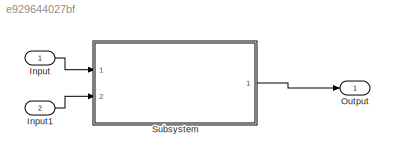
MODEL slx_e929644027bf
KIND model
CONFIG AbsTol = auto
CONFIG EnableMultiTasking = off
CONFIG FixedStep = 0.1
CONFIG MaxStep = auto
CONFIG MinStep = auto
CONFIG RelTol = 1e-3
CONFIG SampleTimeConstraint = Unconstrained
CONFIG SolverName = FixedStepDiscrete
CONFIG StartTime = 0.0
CONFIG StopTime = 10.0
BLOCK [Inport] Input
BLOCK [Inport] Input1
  Port = 2
BLOCK [Outport] Output
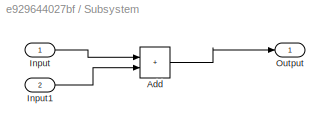
BLOCK [SubSystem] Subsystem
  Ports = [2, 1]
  RequestExecContextInheritance = off
BLOCK [Sum] Subsystem/Add
  IconShape = rectangular
  Ports = [2, 1]
BLOCK [Inport] Subsystem/Input
BLOCK [Inport] Subsystem/Input1
  Port = 2
BLOCK [Outport] Subsystem/Output
LINE Input1:1 -> Subsystem:2
LINE Input:1 -> Subsystem:1
LINE Subsystem/Add:1 -> Subsystem/Output:1
LINE Subsystem/Input1:1 -> Subsystem/Add:2
LINE Subsystem/Input:1 -> Subsystem/Add:1
LINE Subsystem:1 -> Output:1
